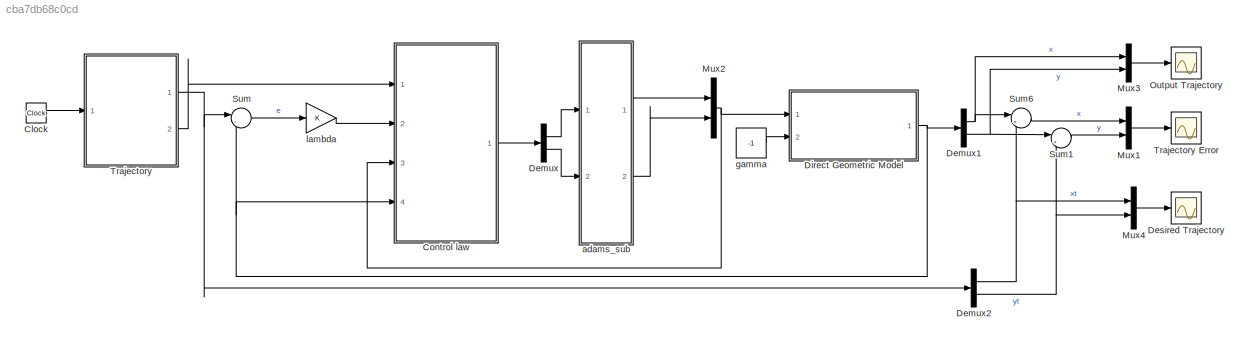
MODEL slx_cba7db68c0cd
KIND model
CONFIG AbsTol = auto
CONFIG EnableMultiTasking = off
CONFIG FixedStep = auto
CONFIG MaxStep = auto
CONFIG MinStep = auto
CONFIG RelTol = 1e-3
CONFIG SampleTimeConstraint = Unconstrained
CONFIG Solver = VariableStepAuto
CONFIG SolverName = VariableStepAuto
CONFIG StartTime = 0.0
CONFIG StopTime = 3
BLOCK [Clock] Clock
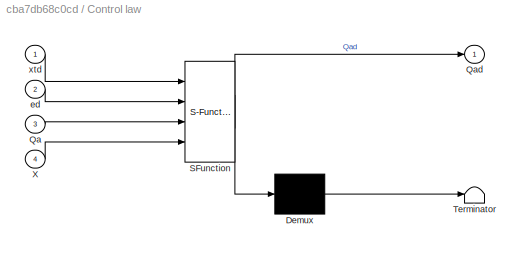
BLOCK [SubSystem] Control law
  ErrorFcn = Stateflow.Translate.translate
  PermitHierarchicalResolution = ExplicitOnly
  Ports = [4, 1]
  RequestExecContextInheritance = off
  SFBlockType = MATLAB Function
  TreatAsAtomicUnit = on
BLOCK [Demux] Control law/ Demux 
  Outputs = 1
  Ports = [1, 1]
BLOCK [S-Function] Control law/ SFunction 
  EnableBusSupport = on
  FunctionName = sf_sfun
  PortCounts = [4 2]
  Ports = [4, 2]
  SFcnIsStateOwnerBlock = off
  SFunctionDeploymentMode = off
  Tag = Stateflow S-Function 1
BLOCK [Terminator] Control law/ Terminator 
BLOCK [Inport] Control law/Qa
  IconDisplay = Port number
  Port = 3
BLOCK [Outport] Control law/Qad
  IconDisplay = Port number
BLOCK [Inport] Control law/X
  IconDisplay = Port number
  Port = 4
BLOCK [Inport] Control law/ed
  IconDisplay = Port number
  Port = 2
BLOCK [Inport] Control law/xtd
  IconDisplay = Port number
BLOCK [Demux] Demux
  DisplayOption = bar
  Outputs = 2
  Ports = [1, 2]
BLOCK [Demux] Demux1
  DisplayOption = bar
  Outputs = 2
  Ports = [1, 2]
BLOCK [Demux] Demux2
  DisplayOption = bar
  Outputs = 2
  Ports = [1, 2]
BLOCK [Scope] Desired Trajectory
  Floating = off
  NumInputPorts = 1
  Ports = [1]
  ScopeSpecificationString = Simulink.scopes.TimeScopeBlockCfg('CurrentConfiguration', extmgr.ConfigurationSet(extmgr.Configuration('Core','General UI',true),extmgr.Configuration('Core','Source UI',true),extmgr.Configuration('Sources','WiredSimulink',true,'DataLoggingVariableName','ScopeData1'),extmgr.Configuration('Visuals','Time Domain',true,'SerializedDisplays',{struct('MinYLimReal','0.3585735784','MaxYLimReal','0.35857358...<+1583ch>
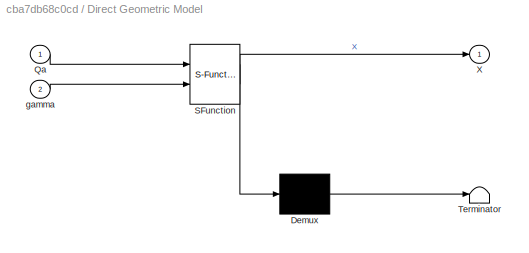
BLOCK [SubSystem] Direct Geometric Model
  ErrorFcn = Stateflow.Translate.translate
  PermitHierarchicalResolution = ExplicitOnly
  Ports = [2, 1]
  RequestExecContextInheritance = off
  SFBlockType = MATLAB Function
  TreatAsAtomicUnit = on
BLOCK [Demux] Direct Geometric Model/ Demux 
  Outputs = 1
  Ports = [1, 1]
BLOCK [S-Function] Direct Geometric Model/ SFunction 
  EnableBusSupport = on
  FunctionName = sf_sfun
  PortCounts = [2 2]
  Ports = [2, 2]
  SFcnIsStateOwnerBlock = off
  SFunctionDeploymentMode = off
  Tag = Stateflow S-Function 5
BLOCK [Terminator] Direct Geometric Model/ Terminator 
BLOCK [Inport] Direct Geometric Model/Qa
  IconDisplay = Port number
BLOCK [Outport] Direct Geometric Model/X
  IconDisplay = Port number
  VectorParamsAs1DForOutWhenUnconnected = off
BLOCK [Inport] Direct Geometric Model/gamma
  IconDisplay = Port number
  Port = 2
BLOCK [Mux] Mux1
  DisplayOption = bar
  Inputs = 2
  Ports = [2, 1]
BLOCK [Mux] Mux2
  DisplayOption = bar
  Inputs = 2
  Ports = [2, 1]
BLOCK [Mux] Mux3
  DisplayOption = bar
  Inputs = 2
  Ports = [2, 1]
BLOCK [Mux] Mux4
  DisplayOption = bar
  Inputs = 2
  Ports = [2, 1]
BLOCK [Scope] Output Trajectory
  Floating = off
  NumInputPorts = 1
  Ports = [1]
  ScopeSpecificationString = Simulink.scopes.TimeScopeBlockCfg('CurrentConfiguration', extmgr.ConfigurationSet(extmgr.Configuration('Core','General UI',true),extmgr.Configuration('Core','Source UI',true),extmgr.Configuration('Sources','WiredSimulink',true,'DataLoggingVariableName','ScopeData1'),extmgr.Configuration('Visuals','Time Domain',true,'SerializedDisplays',{struct('MinYLimReal','-0.06246','MaxYLimReal','0.56218','YLab...<+1526ch>
BLOCK [Sum] Sum
  IconShape = round
  InputSameDT = off
  Inputs = |-+
  OutDataTypeStr = Inherit: Inherit via internal rule
  Ports = [2, 1]
  SaturateOnIntegerOverflow = off
BLOCK [Sum] Sum1
  IconShape = round
  InputSameDT = off
  Inputs = |+-
  OutDataTypeStr = Inherit: Inherit via internal rule
  Ports = [2, 1]
  SaturateOnIntegerOverflow = off
BLOCK [Sum] Sum6
  IconShape = round
  InputSameDT = off
  Inputs = |+-
  OutDataTypeStr = Inherit: Inherit via internal rule
  Ports = [2, 1]
  SaturateOnIntegerOverflow = off
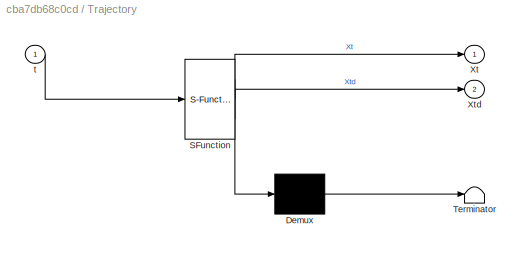
BLOCK [SubSystem] Trajectory
  ErrorFcn = Stateflow.Translate.translate
  PermitHierarchicalResolution = ExplicitOnly
  Ports = [1, 2]
  RequestExecContextInheritance = off
  SFBlockType = MATLAB Function
  TreatAsAtomicUnit = on
BLOCK [Scope] Trajectory Error
  Floating = off
  NumInputPorts = 1
  Ports = [1]
  ScopeSpecificationString = Simulink.scopes.TimeScopeBlockCfg('CurrentConfiguration', extmgr.ConfigurationSet(extmgr.Configuration('Core','General UI',true),extmgr.Configuration('Core','Source UI',true),extmgr.Configuration('Sources','WiredSimulink',true,'DataLoggingVariableName','ScopeData1'),extmgr.Configuration('Visuals','Time Domain',true,'SerializedDisplays',{struct('MinYLimReal','-0.00039','MaxYLimReal','0.00043','YLab...<+1538ch>
BLOCK [Demux] Trajectory/ Demux 
  Outputs = 1
  Ports = [1, 1]
BLOCK [S-Function] Trajectory/ SFunction 
  EnableBusSupport = on
  FunctionName = sf_sfun
  PortCounts = [1 3]
  Ports = [1, 3]
  SFcnIsStateOwnerBlock = off
  SFunctionDeploymentMode = off
  Tag = Stateflow S-Function 4
BLOCK [Terminator] Trajectory/ Terminator 
BLOCK [Outport] Trajectory/Xt
  IconDisplay = Port number
BLOCK [Outport] Trajectory/Xtd
  IconDisplay = Port number
  Port = 2
BLOCK [Inport] Trajectory/t
  IconDisplay = Port number
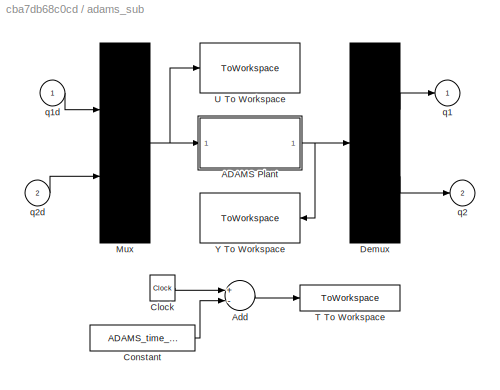
BLOCK [SubSystem] adams_sub
  Ports = [2, 2]
  RequestExecContextInheritance = off
  ShowPortLabels = none
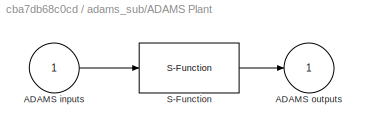
BLOCK [SubSystem] adams_sub/ADAMS Plant
  InitFcn = clear mex
  LoadFcn = %check based on dialog box setting for when setting by popup menu                                             \nif exist('ADAMS_solver_type')                                                                                 \n  if strcmp(ADAMS_solver_type,'C++')                                                                          \n    set_param(gcb,'exetyp','C++');                                 ...<+4486ch>
  OpenFcn = open_system(gcb,'mask')                                                                                                                          \nif not(exist('set_some_params_states'))                                                                                                          \n                                                                                                            ...<+625ch>
  Ports = [1, 1]
  RequestExecContextInheritance = off
BLOCK [Inport] adams_sub/ADAMS Plant/ADAMS inputs
  IconDisplay = Port number
BLOCK [Outport] adams_sub/ADAMS Plant/ADAMS outputs
  IconDisplay = Port number
  InitialOutput = 0
BLOCK [S-Function] adams_sub/ADAMS Plant/S-Function
  EnableBusSupport = off
  FunctionName = adams_plant
  Parameters = exevie,exesol,stat,outfil,nampre,o_rate,nam_in,namout,dft,modsim,modani,dt_out,inicmd,exetyp,comtyp,ada_host, workdir,pin_interp_order,pout_extrap_order,pin_extrap_order,pout_interp_order,simulink_lead_cosim,time_offset
  Ports = [1, 1]
  SFcnIsStateOwnerBlock = off
  SFunctionDeploymentMode = off
  StopFcn = clear mex
BLOCK [Sum] adams_sub/Add
  InputSameDT = off
  Inputs = +-
  OutDataTypeStr = Inherit: Inherit via internal rule
  Ports = [2, 1]
  SaturateOnIntegerOverflow = off
BLOCK [Clock] adams_sub/Clock
BLOCK [Constant] adams_sub/Constant
  Value = ADAMS_time_offset
BLOCK [Demux] adams_sub/Demux
  Outputs = 2
  Ports = [1, 2]
BLOCK [Mux] adams_sub/Mux
  Inputs = 2
  Ports = [2, 1]
BLOCK [ToWorkspace] adams_sub/T To Workspace
  MaxDataPoints = 100000
  Ports = [1]
  VariableName = ADAMS_tout
BLOCK [ToWorkspace] adams_sub/U To Workspace
  MaxDataPoints = 100000
  Ports = [1]
  VariableName = ADAMS_uout
BLOCK [ToWorkspace] adams_sub/Y To Workspace
  MaxDataPoints = 100000
  Ports = [1]
  VariableName = ADAMS_yout
BLOCK [Outport] adams_sub/q1
  IconDisplay = Port number
BLOCK [Inport] adams_sub/q1d
  IconDisplay = Port number
BLOCK [Outport] adams_sub/q2
  IconDisplay = Port number
  Port = 2
BLOCK [Inport] adams_sub/q2d
  IconDisplay = Port number
  Port = 2
BLOCK [Constant] gamma
  Value = -1
BLOCK [Gain] lambda
  OutDataTypeStr = Inherit: Inherit via internal rule
  ParamDataTypeStr = Inherit: Inherit via internal rule
  SaturateOnIntegerOverflow = off
LINE Clock:1 -> Trajectory:1
LINE Control law:1 -> Demux:1
NET Demux1:1 -> Mux3:1, Sum6:1
NET Demux1:2 -> Mux3:2, Sum1:1
NET Demux2:1 -> Mux4:1, Sum6:2
NET Demux2:2 -> Mux4:2, Sum1:2
LINE Demux:1 -> adams_sub:1
LINE Demux:2 -> adams_sub:2
NET Direct Geometric Model:1 -> Control law:4, Demux1:1, Sum:2
LINE Mux1:1 -> Trajectory Error:1
NET Mux2:1 -> Control law:3, Direct Geometric Model:1
LINE Mux3:1 -> Output Trajectory:1
LINE Mux4:1 -> Desired Trajectory:1
LINE Sum1:1 -> Mux1:2
LINE Sum6:1 -> Mux1:1
LINE Sum:1 -> lambda:1
NET Trajectory:1 -> Demux2:1, Sum:1
LINE Trajectory:2 -> Control law:1
LINE adams_sub/ADAMS Plant/ADAMS inputs:1 -> adams_sub/ADAMS Plant/S-Function:1
LINE adams_sub/ADAMS Plant/S-Function:1 -> adams_sub/ADAMS Plant/ADAMS outputs:1
NET adams_sub/ADAMS Plant:1 -> adams_sub/Demux:1, adams_sub/Y To Workspace:1
LINE adams_sub/Add:1 -> adams_sub/T To Workspace:1
LINE adams_sub/Clock:1 -> adams_sub/Add:1
LINE adams_sub/Constant:1 -> adams_sub/Add:2
LINE adams_sub/Demux:1 -> adams_sub/q1:1
LINE adams_sub/Demux:2 -> adams_sub/q2:1
NET adams_sub/Mux:1 -> adams_sub/ADAMS Plant:1, adams_sub/U To Workspace:1
LINE adams_sub/q1d:1 -> adams_sub/Mux:1
LINE adams_sub/q2d:1 -> adams_sub/Mux:2
LINE adams_sub:1 -> Mux2:1
LINE adams_sub:2 -> Mux2:2
LINE gamma:1 -> Direct Geometric Model:2
LINE lambda:1 -> Control law:2
note: NET lines group one-source signal fan-out (src -> all destinations, sorted); 1:1 wires keep LINE
CHART Control law states=1 transitions=1
  STATE_LABEL 'eML_blk_kernel()'
  STATE_LABEL 'SCRIPT:\nfunction Qad  = control_law(xtd,ed, Qa,X)\n%% Geometric Parameters\nd = 0.4;\n\n%% Extract parameters from input\nq1 = Qa(1);\nq2 = Qa(2);\nx = X(1);\ny = X(2);\n\n%% Control Law\nA= 2*[(x+d/2) (y-q1); (x-d/2) (y-q2)];\nB= -2*[(y-q1) 0; 0 (y-q2)];\n\nQad = -B\\(A*(xtd - ed));\nend\n'
CHART Trajectory states=1 transitions=1
  STATE_LABEL 'eML_blk_kernel()'
  STATE_LABEL 'SCRIPT:\nfunction [Xt,Xtd] = trajectory(t)\n\n%% Initial Values\nxi = 0;\nyi = 0.3;\nxf = 0.1;\nyf = 0.5;\ntf = 3;\n\n%% Calculate S and S dot function\ns = 10*(t/tf)^3 - 15*(t/tf)^4 + 6*(t/tf)^5;\nsd = (30/tf)*(t/tf)^2 - (60/tf)*(t/tf)^3 + (30/tf)*(t/tf)^4;\n\n%% Desired Trajectory\nxt = xi + s*(xf-xi);\nyt = yi + s*(yf-yi);\nXt = [xt;yt];\n\n%% Desired Trajectory Velocity\nxtd = sd*(xf-xi);\nytd = sd*(yf-yi);\nXtd = ...<+16ch>'
CHART Direct Geometric Model states=1 transitions=1
  STATE_LABEL 'eML_blk_kernel()'
  STATE_LABEL 'SCRIPT:\nfunction X = DGM(Qa,gamma)\n%% Geometric parameters\nd = 0.4;\nl = 0.3606;\n\nq1 = Qa(1);\nq2 = Qa(2);\n\n%% Segments\nOA = [d/2; q2];\nAM = [-d; q1-q2]/2;\nMC = gamma * sqrt((4*l^2 - d^2 -(q1-q2)^2)/(d^2 + (q1-q2)^2)) * [0 -1; 1 0] * AM;\n\nX= OA + AM + MC;\nend'
